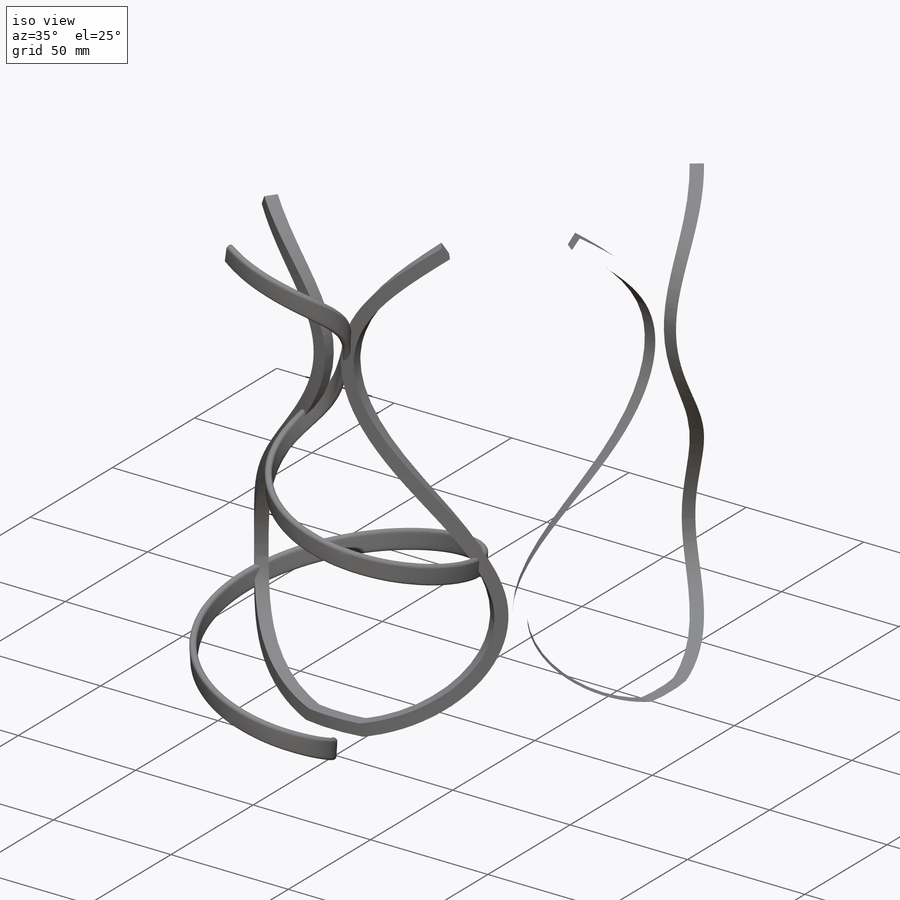
[diagram: iso view]
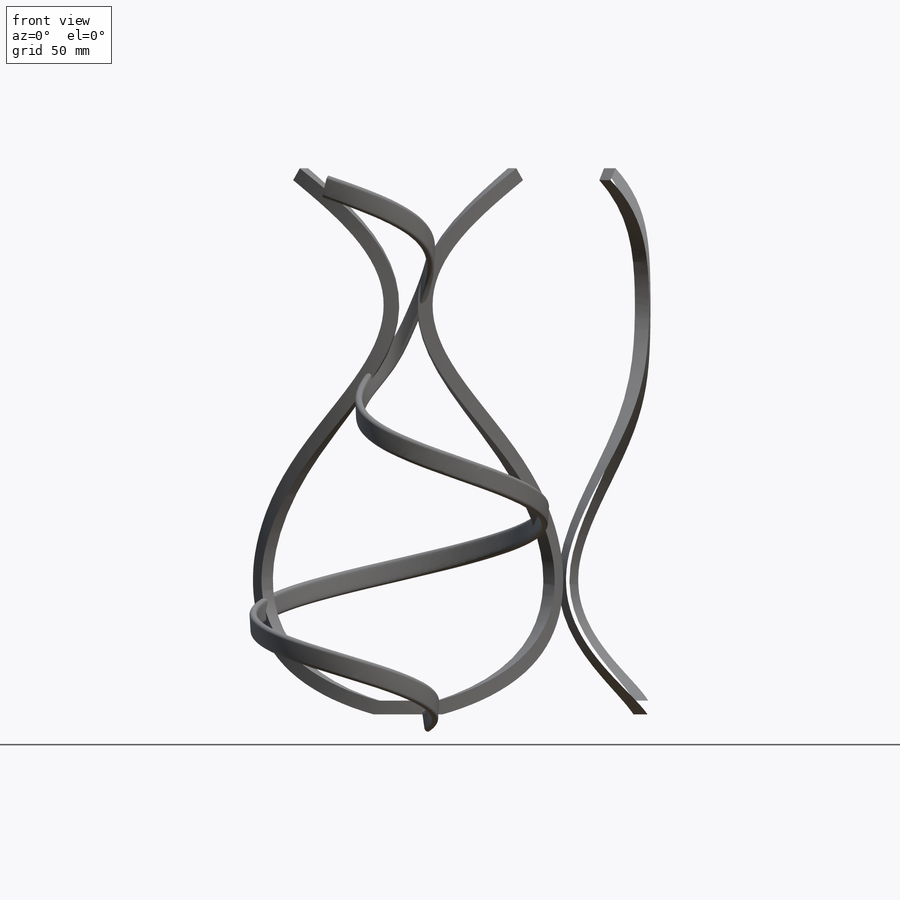
[diagram: front view]
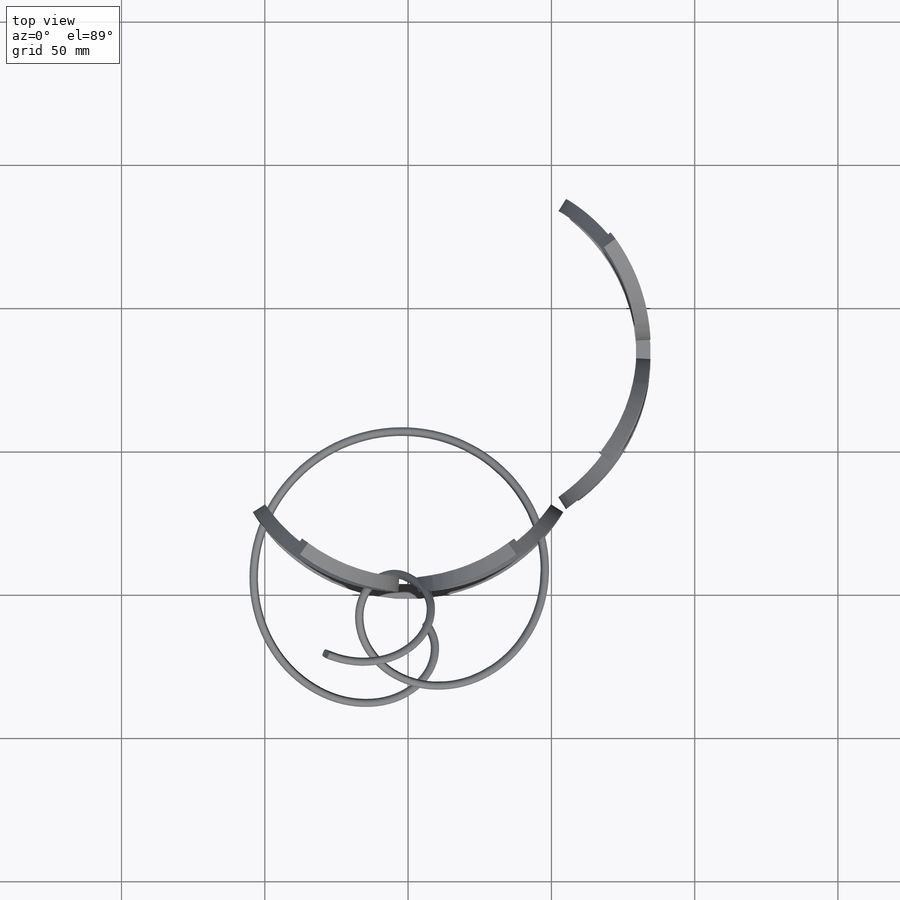
[diagram: top view]
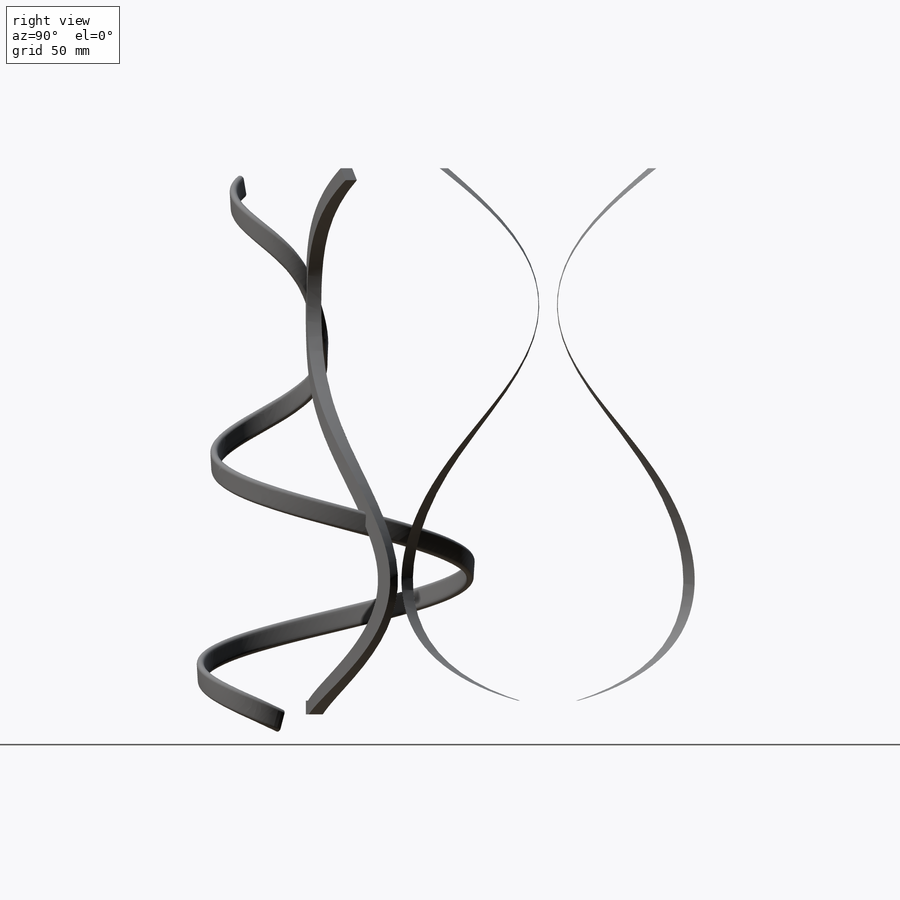
[diagram: right view]
SOLIDWORKS PART (.sldprt)
format: sldprt  version: not decoded by parser v0  size: 1,281,024 bytes
history: native  units: mm
features: sketch x12, plane x5, material x1, extrude x1, sweep x1, pattern_circular x1 (+9 scaffold rows collapsed)
feature tree (30):
  scaffold x9  (default folders/planes/origin — collapsed)
  material  "Material <nicht festgelegt>"
  plane  "Ebene vorne"
  plane  "Ebene oben"
  plane  "Ebene rechts"
  sketch  "Skizze1"  dims[D1=200.0mm D2=5.0mm]
  sketch  "Skizze4"
  extrude  "Aufsatz-Linear austragen2"  Depth=225mm
  sketch  "Skizze5"
  sketch  "Skizze6"  dims[D1=900.0deg]
  plane  "Ebene1"
  sketch  "SkizzeRotFläche"  dims[D1=360.0deg]
  sketch  "3D-Bahnkurve"
  plane  "EbeneAnBahn"
  sketch  "SkizzeProfil"  dims[D1=10.0mm D2=2.0mm]
  sweep  "Austragung1"
  sketch  "Skizze7"  dims[D1=60.0mm]
  sketch  "Skizze10"  dims[D1=4.0 D3=10.0mm D2=1.0 D4=10.0mm]
  pattern_circular  "Kreismuster2"  Count=2 Angle=180deg
  sketch  "3D-Skizze1"  dims[c1.D1=~10.985198mm c2.D1=~1.651067mm]
  sketch  "Skizze8"  dims[D1=0.0mm]
  sketch  "Skizze9"  dims[D1=0.0mm]
decode coverage: 11 of 15 modeling features carry decoded parameters
note: ~ marks probable driven/reference dimensions
note: suppression state not decoded; provenance and decode notes live in map.json
